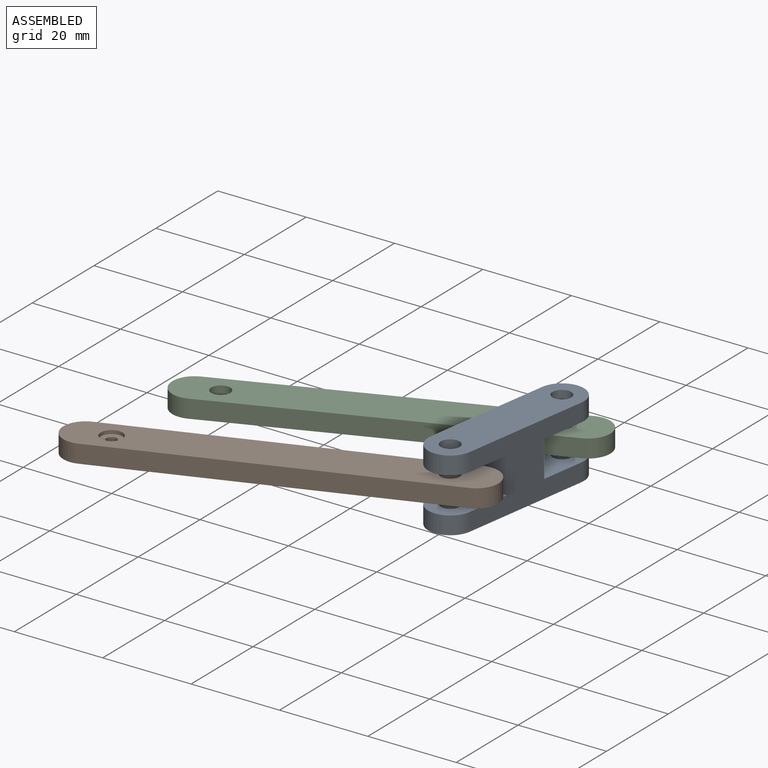
[diagram: assembled view]
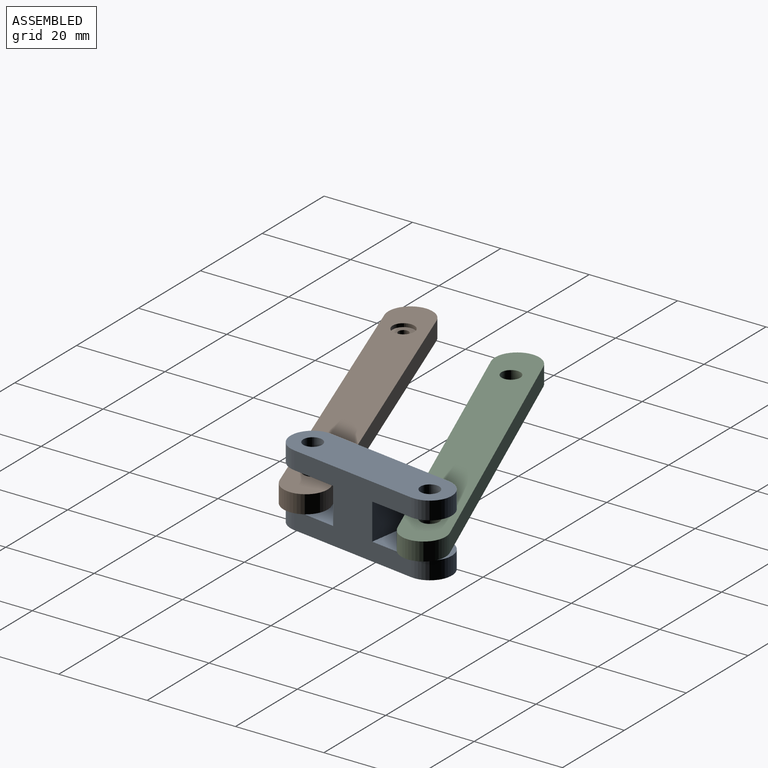
[diagram: assembled view, second angle]
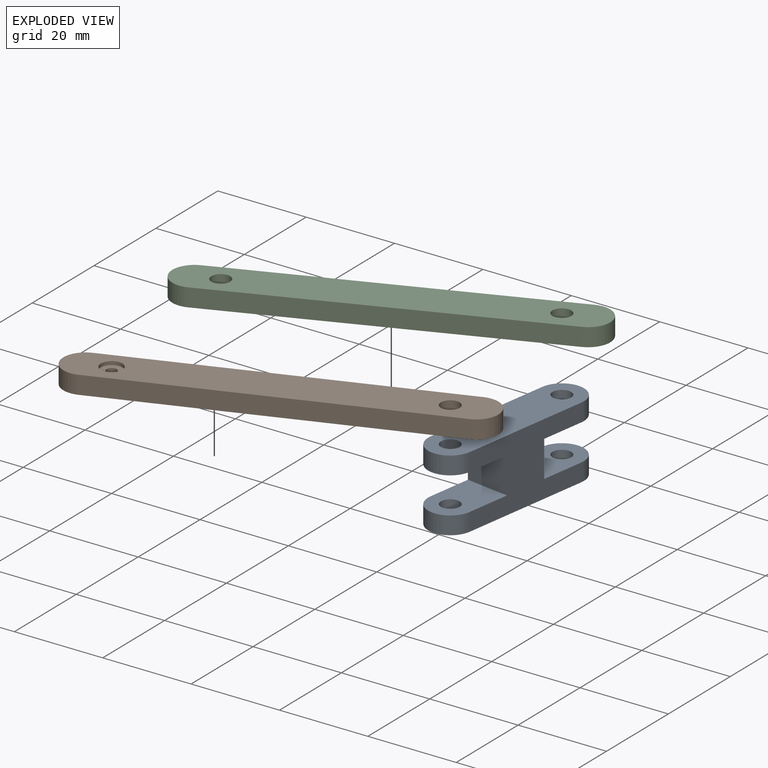
[diagram: exploded view]
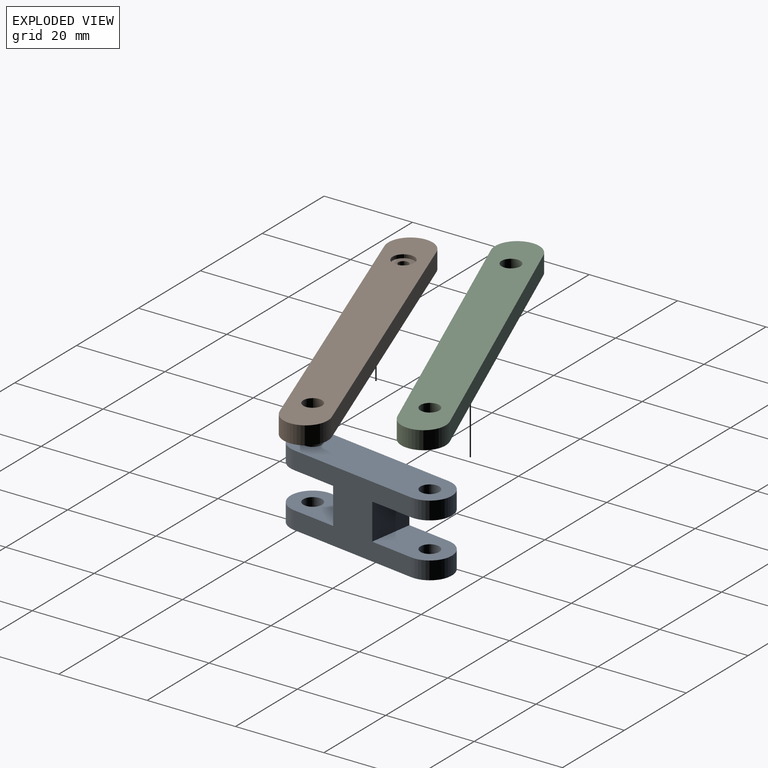
[diagram: exploded view, second angle]
ASSEMBLY  parts=3 mates=2
PART A: 18 faces, bbox 10x16.3x40 mm
  f0: plane 30x16.3mm, normal (1,0,0), area 325mm2, adj f6,f7,f8,f9,f10,f11,f12,f13
  f1: cylinder r=2.12mm len=4.25mm, axis (0,1,0), area 54.1mm2, adj f6,f12
  f2: cylinder r=2.12mm len=4.25mm, axis (0,1,0), area 54.1mm2, adj f7,f8
  f3: plane 30x16.3mm, normal (-1,0,0), area 325mm2, adj f6,f7,f8,f9,f10,f11,f12,f13
  f4: cylinder r=2.12mm len=4.25mm, axis (0,1,0), area 54.1mm2, adj f7,f11
  f5: cylinder r=2.12mm len=4.25mm, axis (0,1,0), area 54.1mm2, adj f6,f9
  f6: plane 40x10mm, normal (0,-1,0), area 350.2mm2, adj f0,f1,f3,f5,f16,f17
  f7: plane 40x10mm, normal (0,1,0), area 350.2mm2, adj f0,f2,f3,f4,f14,f15
  f8: plane 15x10mm, normal (0,-1,0), area 125.1mm2, adj f0,f2,f3,f10,f14
  f9: plane 15x10mm, normal (0,1,0), area 125.1mm2, adj f0,f3,f5,f10,f16
  f10: plane 10x8.2mm, normal (0,0,-1), area 82mm2, adj f0,f3,f8,f9
  f11: plane 15x10mm, normal (0,-1,0), area 125.1mm2, adj f0,f3,f4,f13,f15
  f12: plane 15x10mm, normal (0,1,0), area 125.1mm2, adj f0,f1,f3,f13,f17
  f13: plane 10x8.2mm, normal (0,0,1), area 82mm2, adj f0,f3,f11,f12
  f14: cylinder r=5mm len=10mm, axis (0,1,0), area 63.6mm2, adj f0,f3,f7,f8
  f15: cylinder r=5mm len=10mm, axis (0,-1,0), area 63.6mm2, adj f0,f3,f7,f11
  f16: cylinder r=5mm len=10mm, axis (0,1,0), area 63.6mm2, adj f0,f3,f6,f9
  f17: cylinder r=5mm len=10mm, axis (0,-1,0), area 63.6mm2, adj f0,f3,f6,f12
PART B: 12 faces, bbox 85x4.1x10 mm
  f0: cylinder r=1.15mm len=2.3mm, axis (0,1,0), area 7.6mm2, adj f7,f9
  f1: plane 75x4.1mm, normal (0,0,-1), area 307.5mm2, adj f4,f5,f10,f11
  f2: plane 75x4.1mm, normal (0,0,1), area 307.5mm2, adj f4,f5,f10,f11
  f3: cylinder r=2.12mm len=4.25mm, axis (0,1,0), area 54.7mm2, adj f4,f5
  f4: plane 85x10mm, normal (0,-1,0), area 795.5mm2, adj f1,f2,f3,f6,f10,f11
  f5: plane 85x10mm, normal (0,1,0), area 798.7mm2, adj f1,f2,f3,f8,f10,f11
  f6: cylinder r=2.45mm len=4.9mm, axis (0,-1,0), area 12.3mm2, adj f4,f7
  f7: plane 4.9x4.9mm, normal (0,-1,0), area 14.7mm2, adj f0,f6
  f8: cylinder r=2.23mm len=4.47mm, axis (0,1,0), area 31.6mm2, adj f5,f9
  f9: plane 4.47x4.47mm, normal (0,1,0), area 11.5mm2, adj f0,f8
  f10: cylinder r=5mm len=10mm, axis (0,1,0), area 64.4mm2, adj f1,f2,f4,f5
  f11: cylinder r=5mm len=10mm, axis (0,1,0), area 64.4mm2, adj f1,f2,f4,f5
PART C: 8 faces, bbox 85x4.1x10 mm
  f0: plane 75x4.1mm, normal (0,0,-1), area 307.5mm2, adj f4,f5,f6,f7
  f1: plane 75x4.1mm, normal (0,0,1), area 307.5mm2, adj f4,f5,f6,f7
  f2: cylinder r=2.12mm len=4.25mm, axis (0,1,0), area 54.7mm2, adj f4,f5
  f3: cylinder r=2.12mm len=4.25mm, axis (0,1,0), area 54.7mm2, adj f4,f5
  f4: plane 85x10mm, normal (0,-1,0), area 800.2mm2, adj f0,f1,f2,f3,f6,f7
  f5: plane 85x10mm, normal (0,1,0), area 800.2mm2, adj f0,f1,f2,f3,f6,f7
  f6: cylinder r=5mm len=10mm, axis (0,1,0), area 64.4mm2, adj f0,f1,f4,f5
  f7: cylinder r=5mm len=10mm, axis (0,1,0), area 64.4mm2, adj f0,f1,f4,f5
PLACE A rot(axis=(-0.99,0.07,-0.07),90.3deg) t=(63.33,37.05,-10.2)mm
PLACE B rot(axis=(-0.97,-0.17,0.17),91.7deg) t=(30.54,11.11,-4.1)mm
PLACE C rot(axis=(-0.97,-0.18,0.18),92deg) t=(35.36,39.91,-4.1)mm
MATE revolute B.f3 <-> A.f2  axis (0,0,1) through (61.08,22.22,0)mm
MATE revolute A.f15 <-> C.f3  axis (0,0,1) through (65.58,51.88,6.1)mm
